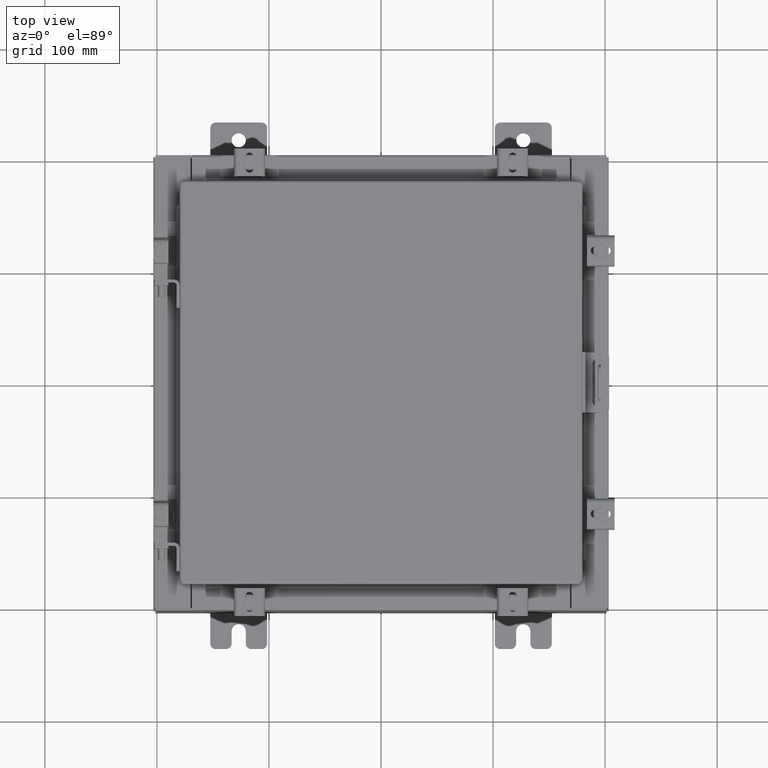
[diagram: clean part render]
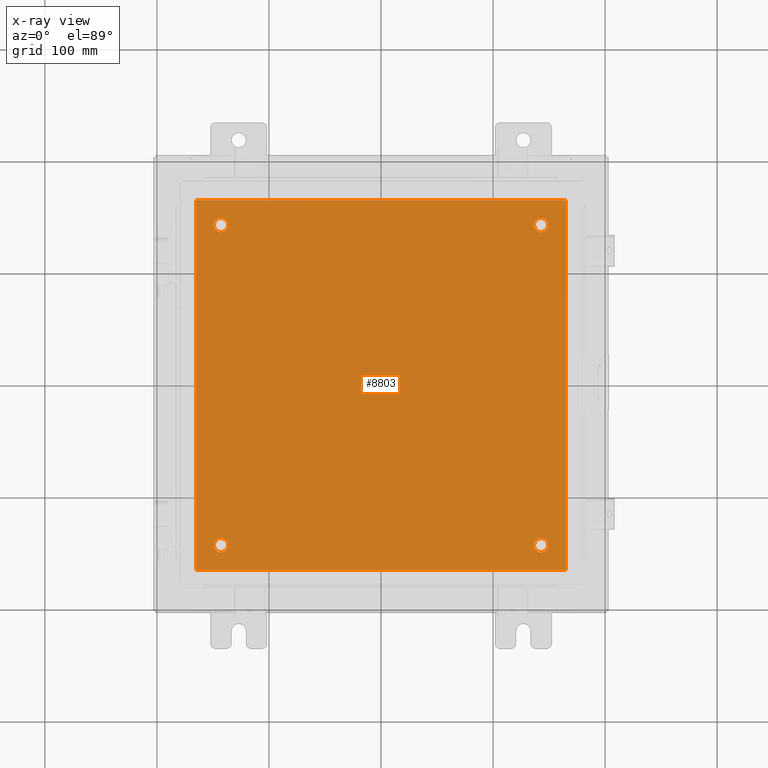
[diagram: x-ray — body ghosted, one internal face saturated and labeled with its STEP entity id]
A machine part, top view, then the same camera in x-ray: the body is ghosted and one INTERNAL B-rep face — a face not visible from any outside direction — is saturated and labeled: STEP entity #8803.
In plain terms, the highlighted planar face has unit normal (0, 0, -1).
Its self-contained STEP definition (entity closure, byte-faithful):
#43 = CIRCLE ( 'NONE', #2988, 0.2499999999999998100 ) ;
#72 = DIRECTION ( 'NONE',  ( -1.000000000000000000, 0.0000000000000000000, 0.0000000000000000000 ) ) ;
#101 = ORIENTED_EDGE ( 'NONE', *, *, #6214, .T. ) ;
#533 = AXIS2_PLACEMENT_3D ( 'NONE', #3423, #14747, #5056 ) ;
#647 = LINE ( 'NONE', #4027, #6492 ) ;
#703 = LINE ( 'NONE', #13307, #13575 ) ;
#808 = DIRECTION ( 'NONE',  ( -1.000000000000000000, 0.0000000000000000000, 0.0000000000000000000 ) ) ;
#906 = CARTESIAN_POINT ( 'NONE',  ( 0.0000000000000000000, 0.0000000000000000000, -0.1039999999999999800 ) ) ;
#1069 = CARTESIAN_POINT ( 'NONE',  ( -5.375000000000002700, -5.625000000000000900, -0.1039999999999999800 ) ) ;
#1113 = ORIENTED_EDGE ( 'NONE', *, *, #10206, .F. ) ;
#1168 = FACE_BOUND ( 'NONE', #4117, .T. ) ;
#1306 = CIRCLE ( 'NONE', #19093, 0.2499999999999998100 ) ;
#1405 = EDGE_CURVE ( 'NONE', #12925, #4139, #647, .T. ) ;
#1761 = ORIENTED_EDGE ( 'NONE', *, *, #1405, .F. ) ;
#1799 = CARTESIAN_POINT ( 'NONE',  ( -5.375000000000002700, 5.625000000000000900, -0.1039999999999999800 ) ) ;
#1831 = CARTESIAN_POINT ( 'NONE',  ( -6.500000000000000000, 6.500000000000000900, -0.1039999999999999800 ) ) ;
#1836 = CARTESIAN_POINT ( 'NONE',  ( -5.625000000000002700, 5.625000000000000900, -0.1039999999999999800 ) ) ;
#2192 = VERTEX_POINT ( 'NONE', #1799 ) ;
#2341 = DIRECTION ( 'NONE',  ( -0.0000000000000000000, -1.000000000000000000, -0.0000000000000000000 ) ) ;
#2481 = VERTEX_POINT ( 'NONE', #20187 ) ;
#2786 = EDGE_LOOP ( 'NONE', ( #17535, #11530 ) ) ;
#2788 = ORIENTED_EDGE ( 'NONE', *, *, #8306, .F. ) ;
#2988 = AXIS2_PLACEMENT_3D ( 'NONE', #19395, #9745, #72 ) ;
#3328 = AXIS2_PLACEMENT_3D ( 'NONE', #20115, #10477, #808 ) ;
#3379 = CARTESIAN_POINT ( 'NONE',  ( -6.500000000000000000, 6.500000000000000900, -0.1039999999999999800 ) ) ;
#3423 = CARTESIAN_POINT ( 'NONE',  ( 5.625000000000002700, 5.625000000000000900, -0.1039999999999999800 ) ) ;
#3453 = DIRECTION ( 'NONE',  ( -1.000000000000000000, 0.0000000000000000000, 0.0000000000000000000 ) ) ;
#3660 = DIRECTION ( 'NONE',  ( 1.000000000000000000, 0.0000000000000000000, 0.0000000000000000000 ) ) ;
#3944 = CARTESIAN_POINT ( 'NONE',  ( -5.625000000000002700, -5.625000000000000900, -0.1039999999999999800 ) ) ;
#4027 = CARTESIAN_POINT ( 'NONE',  ( -6.500000000000000000, -6.499999999999999100, -0.1039999999999999800 ) ) ;
#4083 = CARTESIAN_POINT ( 'NONE',  ( 5.625000000000002700, -5.625000000000000900, -0.1039999999999999800 ) ) ;
#4117 = EDGE_LOOP ( 'NONE', ( #15691, #8856 ) ) ;
#4139 = VERTEX_POINT ( 'NONE', #5827 ) ;
#4306 = CARTESIAN_POINT ( 'NONE',  ( 5.875000000000000900, 5.625000000000000900, -0.1039999999999999800 ) ) ;
#4452 = EDGE_CURVE ( 'NONE', #2192, #13687, #1306, .T. ) ;
#5056 = DIRECTION ( 'NONE',  ( -1.000000000000000000, 0.0000000000000000000, 0.0000000000000000000 ) ) ;
#5372 = VERTEX_POINT ( 'NONE', #15801 ) ;
#5480 = FACE_BOUND ( 'NONE', #14429, .T. ) ;
#5531 = EDGE_CURVE ( 'NONE', #12769, #18247, #17545, .T. ) ;
#5614 = DIRECTION ( 'NONE',  ( -1.000000000000000000, 0.0000000000000000000, 0.0000000000000000000 ) ) ;
#5732 = DIRECTION ( 'NONE',  ( -1.000000000000000000, 0.0000000000000000000, 0.0000000000000000000 ) ) ;
#5827 = CARTESIAN_POINT ( 'NONE',  ( -6.500000000000000000, -6.499999999999999100, -0.1039999999999999800 ) ) ;
#6059 = VERTEX_POINT ( 'NONE', #6479 ) ;
#6214 = EDGE_CURVE ( 'NONE', #6336, #18661, #14979, .T. ) ;
#6336 = VERTEX_POINT ( 'NONE', #1069 ) ;
#6479 = CARTESIAN_POINT ( 'NONE',  ( 6.500000000000000000, -6.499999999999999100, -0.1039999999999999800 ) ) ;
#6492 = VECTOR ( 'NONE', #2341, 39.37007874015748100 ) ;
#6576 = VERTEX_POINT ( 'NONE', #14219 ) ;
#6829 = AXIS2_PLACEMENT_3D ( 'NONE', #8551, #19808, #10139 ) ;
#6997 = CARTESIAN_POINT ( 'NONE',  ( -5.875000000000001800, 5.625000000000000900, -0.1039999999999999800 ) ) ;
#7434 = DIRECTION ( 'NONE',  ( -1.000000000000000000, 0.0000000000000000000, -0.0000000000000000000 ) ) ;
#7472 = LINE ( 'NONE', #3379, #19790 ) ;
#7510 = DIRECTION ( 'NONE',  ( -0.0000000000000000000, -0.0000000000000000000, 1.000000000000000000 ) ) ;
#7716 = EDGE_CURVE ( 'NONE', #13687, #2192, #10078, .T. ) ;
#8306 = EDGE_CURVE ( 'NONE', #6059, #6576, #13854, .T. ) ;
#8540 = EDGE_CURVE ( 'NONE', #4139, #6059, #703, .T. ) ;
#8551 = CARTESIAN_POINT ( 'NONE',  ( 5.625000000000002700, 5.625000000000000900, -0.1039999999999999800 ) ) ;
#8654 = CARTESIAN_POINT ( 'NONE',  ( -5.875000000000001800, -5.625000000000000900, -0.1039999999999999800 ) ) ;
#8774 = EDGE_CURVE ( 'NONE', #2481, #5372, #14588, .T. ) ;
#8803 = ADVANCED_FACE ( 'NONE', ( #9765, #17850, #5480, #1168, #13522 ), #13806, .T. ) ;
#8830 = EDGE_CURVE ( 'NONE', #5372, #2481, #17352, .T. ) ;
#8856 = ORIENTED_EDGE ( 'NONE', *, *, #7716, .T. ) ;
#9712 = AXIS2_PLACEMENT_3D ( 'NONE', #4083, #15383, #5732 ) ;
#9745 = DIRECTION ( 'NONE',  ( -0.0000000000000000000, -0.0000000000000000000, 1.000000000000000000 ) ) ;
#9765 = FACE_BOUND ( 'NONE', #18731, .T. ) ;
#10078 = CIRCLE ( 'NONE', #3328, 0.2499999999999998100 ) ;
#10139 = DIRECTION ( 'NONE',  ( -1.000000000000000000, 0.0000000000000000000, 0.0000000000000000000 ) ) ;
#10206 = EDGE_CURVE ( 'NONE', #6576, #12925, #7472, .T. ) ;
#10477 = DIRECTION ( 'NONE',  ( -0.0000000000000000000, -0.0000000000000000000, 1.000000000000000000 ) ) ;
#11158 = CARTESIAN_POINT ( 'NONE',  ( 5.375000000000003600, 5.625000000000000900, -0.1039999999999999800 ) ) ;
#11530 = ORIENTED_EDGE ( 'NONE', *, *, #8774, .T. ) ;
#11942 = EDGE_CURVE ( 'NONE', #18661, #6336, #43, .T. ) ;
#12402 = CIRCLE ( 'NONE', #6829, 0.2499999999999987000 ) ;
#12730 = ORIENTED_EDGE ( 'NONE', *, *, #5531, .T. ) ;
#12769 = VERTEX_POINT ( 'NONE', #11158 ) ;
#12925 = VERTEX_POINT ( 'NONE', #1831 ) ;
#13049 = DIRECTION ( 'NONE',  ( -1.000000000000000000, -0.0000000000000000000, -0.0000000000000000000 ) ) ;
#13121 = DIRECTION ( 'NONE',  ( -0.0000000000000000000, -0.0000000000000000000, 1.000000000000000000 ) ) ;
#13307 = CARTESIAN_POINT ( 'NONE',  ( -6.500000000000000000, -6.499999999999999100, -0.1039999999999999800 ) ) ;
#13522 = FACE_OUTER_BOUND ( 'NONE', #20195, .T. ) ;
#13575 = VECTOR ( 'NONE', #3660, 39.37007874015748100 ) ;
#13687 = VERTEX_POINT ( 'NONE', #6997 ) ;
#13806 = PLANE ( 'NONE',  #14039 ) ;
#13854 = LINE ( 'NONE', #17660, #16999 ) ;
#14039 = AXIS2_PLACEMENT_3D ( 'NONE', #906, #17089, #7434 ) ;
#14219 = CARTESIAN_POINT ( 'NONE',  ( 6.500000000000000000, 6.500000000000000900, -0.1039999999999999800 ) ) ;
#14429 = EDGE_LOOP ( 'NONE', ( #19852, #12730 ) ) ;
#14588 = CIRCLE ( 'NONE', #9712, 0.2499999999999987000 ) ;
#14747 = DIRECTION ( 'NONE',  ( -0.0000000000000000000, -0.0000000000000000000, 1.000000000000000000 ) ) ;
#14979 = CIRCLE ( 'NONE', #20844, 0.2499999999999998100 ) ;
#15122 = AXIS2_PLACEMENT_3D ( 'NONE', #17142, #7510, #18752 ) ;
#15285 = DIRECTION ( 'NONE',  ( -0.0000000000000000000, -0.0000000000000000000, 1.000000000000000000 ) ) ;
#15383 = DIRECTION ( 'NONE',  ( -0.0000000000000000000, -0.0000000000000000000, 1.000000000000000000 ) ) ;
#15691 = ORIENTED_EDGE ( 'NONE', *, *, #4452, .T. ) ;
#15801 = CARTESIAN_POINT ( 'NONE',  ( 5.875000000000000900, -5.625000000000000900, -0.1039999999999999800 ) ) ;
#16061 = DIRECTION ( 'NONE',  ( 0.0000000000000000000, 1.000000000000000000, 0.0000000000000000000 ) ) ;
#16482 = EDGE_CURVE ( 'NONE', #18247, #12769, #12402, .T. ) ;
#16626 = ORIENTED_EDGE ( 'NONE', *, *, #11942, .T. ) ;
#16999 = VECTOR ( 'NONE', #16061, 39.37007874015748100 ) ;
#17089 = DIRECTION ( 'NONE',  ( 0.0000000000000000000, 0.0000000000000000000, -1.000000000000000000 ) ) ;
#17142 = CARTESIAN_POINT ( 'NONE',  ( 5.625000000000002700, -5.625000000000000900, -0.1039999999999999800 ) ) ;
#17352 = CIRCLE ( 'NONE', #15122, 0.2499999999999987000 ) ;
#17463 = ORIENTED_EDGE ( 'NONE', *, *, #8540, .F. ) ;
#17535 = ORIENTED_EDGE ( 'NONE', *, *, #8830, .T. ) ;
#17545 = CIRCLE ( 'NONE', #533, 0.2499999999999987000 ) ;
#17660 = CARTESIAN_POINT ( 'NONE',  ( 6.500000000000000000, -6.499999999999999100, -0.1039999999999999800 ) ) ;
#17850 = FACE_BOUND ( 'NONE', #2786, .T. ) ;
#18247 = VERTEX_POINT ( 'NONE', #4306 ) ;
#18661 = VERTEX_POINT ( 'NONE', #8654 ) ;
#18731 = EDGE_LOOP ( 'NONE', ( #101, #16626 ) ) ;
#18752 = DIRECTION ( 'NONE',  ( -1.000000000000000000, 0.0000000000000000000, 0.0000000000000000000 ) ) ;
#19093 = AXIS2_PLACEMENT_3D ( 'NONE', #1836, #13121, #3453 ) ;
#19395 = CARTESIAN_POINT ( 'NONE',  ( -5.625000000000002700, -5.625000000000000900, -0.1039999999999999800 ) ) ;
#19790 = VECTOR ( 'NONE', #13049, 39.37007874015748100 ) ;
#19808 = DIRECTION ( 'NONE',  ( -0.0000000000000000000, -0.0000000000000000000, 1.000000000000000000 ) ) ;
#19852 = ORIENTED_EDGE ( 'NONE', *, *, #16482, .T. ) ;
#20115 = CARTESIAN_POINT ( 'NONE',  ( -5.625000000000002700, 5.625000000000000900, -0.1039999999999999800 ) ) ;
#20187 = CARTESIAN_POINT ( 'NONE',  ( 5.375000000000003600, -5.625000000000000900, -0.1039999999999999800 ) ) ;
#20195 = EDGE_LOOP ( 'NONE', ( #2788, #17463, #1761, #1113 ) ) ;
#20844 = AXIS2_PLACEMENT_3D ( 'NONE', #3944, #15285, #5614 ) ;